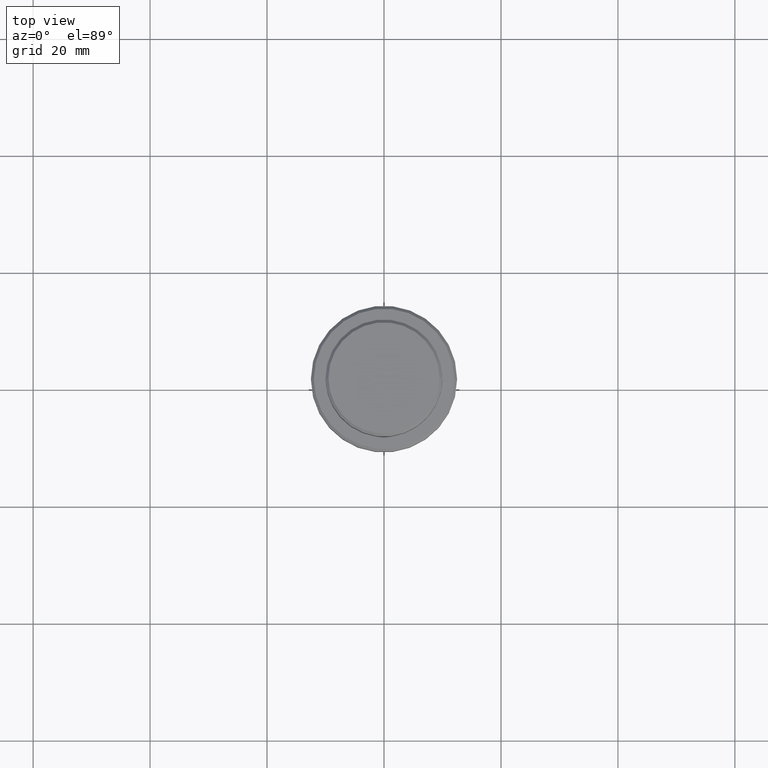
[diagram: clean part render]
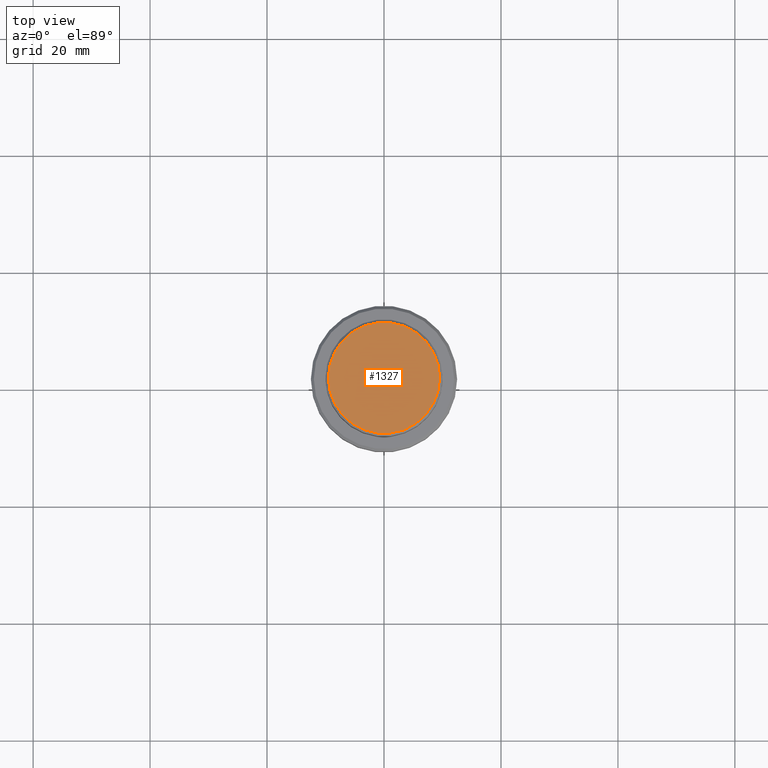
[diagram: same view with one face highlighted and labeled with its STEP entity id]
A machine part, top view. The second image highlights one B-rep face of the part: STEP entity #1327.
In plain terms, the highlighted planar face has unit normal (0, -0, 1).
Its self-contained STEP definition (entity closure, byte-faithful):
#4 = ORIENTED_EDGE ( 'NONE', *, *, #917, .T. ) ;
#33 = DIRECTION ( 'NONE',  ( 1.000000000000000000, 0.000000000000000000, 0.000000000000000000 ) ) ;
#100 = DIRECTION ( 'NONE',  ( 0.000000000000000000, -0.000000000000000000, 1.000000000000000000 ) ) ;
#104 = CARTESIAN_POINT ( 'NONE',  ( 0.000000000000000000, 0.000000000000000000, 0.000000000000000000 ) ) ;
#312 = CARTESIAN_POINT ( 'NONE',  ( 0.000000000000000000, 0.000000000000000000, 0.000000000000000000 ) ) ;
#313 = CARTESIAN_POINT ( 'NONE',  ( -9.500000000000023093, 0.000000000000000000, 0.000000000000000000 ) ) ;
#339 = EDGE_CURVE ( 'NONE', #1067, #1074, #424, .T. ) ;
#357 = AXIS2_PLACEMENT_3D ( 'NONE', #1006, #571, #33 ) ;
#424 = CIRCLE ( 'NONE', #357, 9.500000000000023093 ) ;
#552 = ORIENTED_EDGE ( 'NONE', *, *, #339, .T. ) ;
#571 = DIRECTION ( 'NONE',  ( -0.000000000000000000, -0.000000000000000000, 1.000000000000000000 ) ) ;
#576 = EDGE_LOOP ( 'NONE', ( #552, #4 ) ) ;
#635 = DIRECTION ( 'NONE',  ( -0.000000000000000000, -0.000000000000000000, 1.000000000000000000 ) ) ;
#638 = DIRECTION ( 'NONE',  ( 1.000000000000000000, 0.000000000000000000, 0.000000000000000000 ) ) ;
#639 = CARTESIAN_POINT ( 'NONE',  ( 9.500000000000023093, 1.194030629168670653E-15, 0.000000000000000000 ) ) ;
#855 = PLANE ( 'NONE',  #1250 ) ;
#917 = EDGE_CURVE ( 'NONE', #1074, #1067, #1394, .T. ) ;
#1006 = CARTESIAN_POINT ( 'NONE',  ( 0.000000000000000000, 0.000000000000000000, 0.000000000000000000 ) ) ;
#1064 = FACE_OUTER_BOUND ( 'NONE', #576, .T. ) ;
#1067 = VERTEX_POINT ( 'NONE', #313 ) ;
#1074 = VERTEX_POINT ( 'NONE', #639 ) ;
#1175 = DIRECTION ( 'NONE',  ( 1.000000000000000000, 0.000000000000000000, 0.000000000000000000 ) ) ;
#1250 = AXIS2_PLACEMENT_3D ( 'NONE', #312, #100, #638 ) ;
#1301 = AXIS2_PLACEMENT_3D ( 'NONE', #104, #635, #1175 ) ;
#1327 = ADVANCED_FACE ( 'NONE', ( #1064 ), #855, .T. ) ;
#1394 = CIRCLE ( 'NONE', #1301, 9.500000000000023093 ) ;